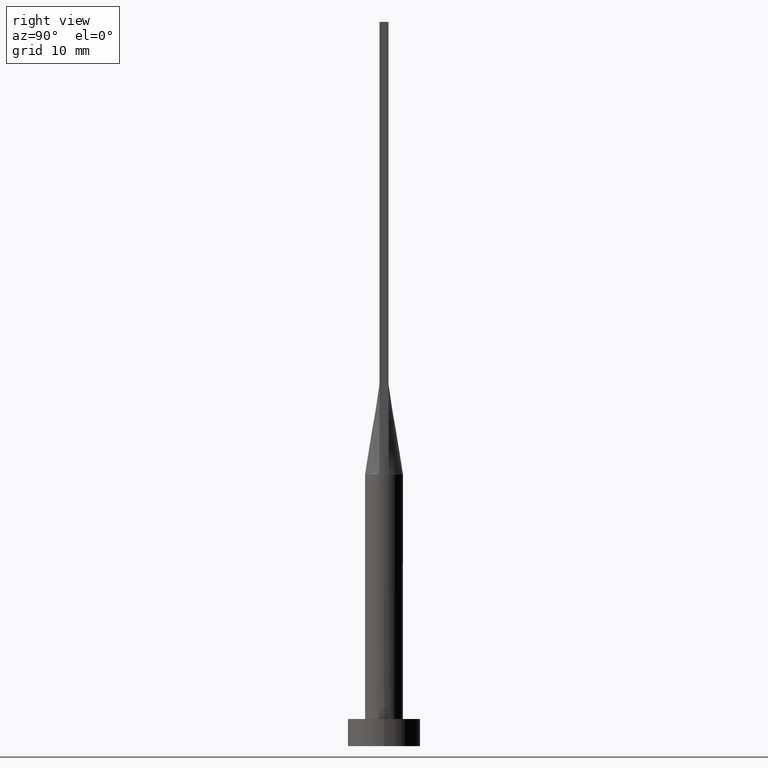
[diagram: clean part render]
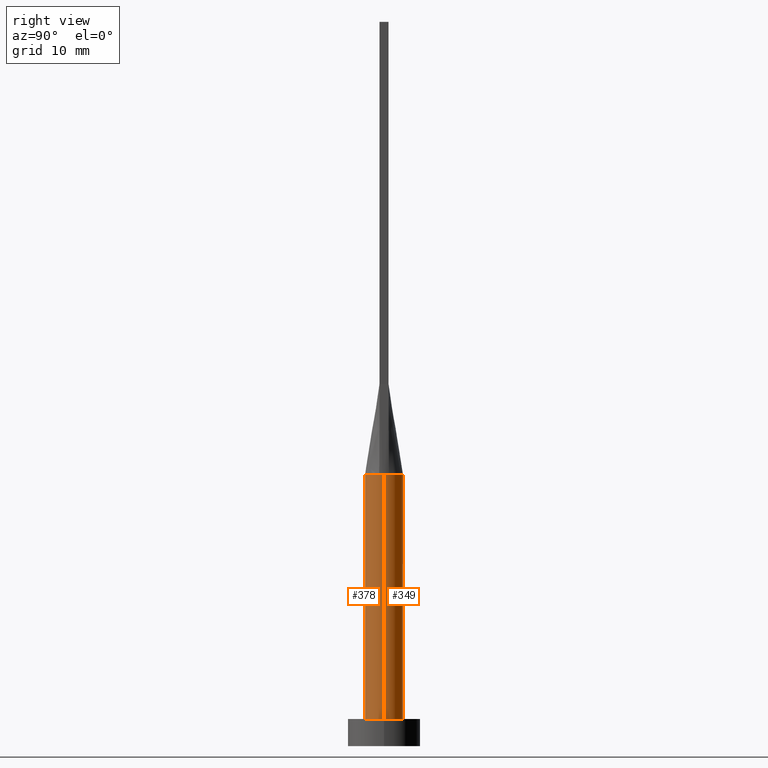
[diagram: same view with one multi-face feature highlighted, each face labeled with its STEP entity id]
A machine part, right view. The highlighted faces form ONE feature: a constant-radius fillet chain: 2 tangent blend faces with common blend radius 2.1 mm. The faces share edges in the B-rep.
Their STEP definitions:
[1] entity #349 (Cylinder):
#2 = CARTESIAN_POINT ( 'NONE',  ( -1.583604922800830428, 1.399063468093436402, 29.99999999999999289 ) ) ;
#25 = DIRECTION ( 'NONE',  ( -0.000000000000000000, -0.000000000000000000, -1.000000000000000000 ) ) ;
#31 = VERTEX_POINT ( 'NONE', #255 ) ;
#46 = CARTESIAN_POINT ( 'NONE',  ( 1.021961681204346606, 1.852908961101259244, 30.00000000000000355 ) ) ;
#53 = B_SPLINE_CURVE_WITH_KNOTS ( 'NONE', 3,
 ( #481, #566, #294, #412, #538, #83, #46, #414, #542, #263, #315, #222, #496, #2, #130, #313, #264, #446 ),
 .UNSPECIFIED., .F., .F.,
 ( 4, 2, 2, 2, 2, 2, 2, 2, 4 ),
 ( 0.000000000000000000, 0.1250000000000000278, 0.2500000000000000555, 0.3750000000000001110, 0.5000000000000000000, 0.6250000000000000000, 0.7500000000000000000, 0.8750000000000001110, 1.000000000000000000 ),
 .UNSPECIFIED. ) ;
#55 = ORIENTED_EDGE ( 'NONE', *, *, #98, .F. ) ;
#71 = DIRECTION ( 'NONE',  ( -0.000000000000000000, -0.000000000000000000, -1.000000000000000000 ) ) ;
#74 = VERTEX_POINT ( 'NONE', #252 ) ;
#75 = EDGE_CURVE ( 'NONE', #74, #275, #53, .T. ) ;
#83 = CARTESIAN_POINT ( 'NONE',  ( 1.235326090059014614, 1.714395692508636770, 30.00000000000001421 ) ) ;
#87 = CIRCLE ( 'NONE', #304, 2.100000000000000089 ) ;
#98 = EDGE_CURVE ( 'NONE', #275, #31, #293, .T. ) ;
#115 = VECTOR ( 'NONE', #71, 1000.000000000000000 ) ;
#125 = EDGE_LOOP ( 'NONE', ( #148, #280, #510, #574, #55, #567 ) ) ;
#130 = CARTESIAN_POINT ( 'NONE',  ( -1.719043754744861596, 1.223020672007445242, 29.99999999999999289 ) ) ;
#134 = CARTESIAN_POINT ( 'NONE',  ( -2.100000000000000089, 0.000000000000000000, 3.000000000000000000 ) ) ;
#148 = ORIENTED_EDGE ( 'NONE', *, *, #413, .F. ) ;
#162 = CYLINDRICAL_SURFACE ( 'NONE', #199, 2.100000000000000089 ) ;
#171 = DIRECTION ( 'NONE',  ( 0.000000000000000000, 0.000000000000000000, 1.000000000000000000 ) ) ;
#178 = VERTEX_POINT ( 'NONE', #553 ) ;
#191 = DIRECTION ( 'NONE',  ( 1.000000000000000000, 0.000000000000000000, 0.000000000000000000 ) ) ;
#199 = AXIS2_PLACEMENT_3D ( 'NONE', #342, #530, #299 ) ;
#213 = LINE ( 'NONE', #482, #491 ) ;
#222 = CARTESIAN_POINT ( 'NONE',  ( -1.021961681204346384, 1.852908961101259022, 30.00000000000000000 ) ) ;
#230 = VERTEX_POINT ( 'NONE', #238 ) ;
#238 = CARTESIAN_POINT ( 'NONE',  ( 2.100000000000000089, 3.372022381799045987E-17, 30.00000000000000000 ) ) ;
#252 = CARTESIAN_POINT ( 'NONE',  ( 2.030996101999494652, 0.5344731476277209126, 30.00000000000000000 ) ) ;
#253 = EDGE_CURVE ( 'NONE', #178, #417, #451, .T. ) ;
#255 = CARTESIAN_POINT ( 'NONE',  ( -2.100000000000000089, -1.080980291041873360E-16, 30.00000000000000000 ) ) ;
#256 = AXIS2_PLACEMENT_3D ( 'NONE', #310, #171, #458 ) ;
#263 = CARTESIAN_POINT ( 'NONE',  ( -0.2698109971861040179, 2.100000000000000089, 30.00000000000000000 ) ) ;
#264 = CARTESIAN_POINT ( 'NONE',  ( -1.987786580065029174, 0.6981017315960602598, 30.00000000000000000 ) ) ;
#269 = DIRECTION ( 'NONE',  ( 0.000000000000000000, 0.000000000000000000, 1.000000000000000000 ) ) ;
#271 = CARTESIAN_POINT ( 'NONE',  ( 0.000000000000000000, 0.000000000000000000, 30.00000000000000000 ) ) ;
#273 = DIRECTION ( 'NONE',  ( 0.000000000000000000, 0.000000000000000000, 1.000000000000000000 ) ) ;
#275 = VERTEX_POINT ( 'NONE', #564 ) ;
#280 = ORIENTED_EDGE ( 'NONE', *, *, #333, .T. ) ;
#293 = CIRCLE ( 'NONE', #256, 2.100000000000000089 ) ;
#294 = CARTESIAN_POINT ( 'NONE',  ( 1.920830191244603746, 0.8725264301372623876, 29.99999999999998934 ) ) ;
#299 = DIRECTION ( 'NONE',  ( -1.000000000000000000, 0.000000000000000000, 0.000000000000000000 ) ) ;
#304 = AXIS2_PLACEMENT_3D ( 'NONE', #271, #269, #461 ) ;
#310 = CARTESIAN_POINT ( 'NONE',  ( 0.000000000000000000, 0.000000000000000000, 30.00000000000000000 ) ) ;
#313 = CARTESIAN_POINT ( 'NONE',  ( -1.920830191244604412, 0.8725264301372623876, 29.99999999999999645 ) ) ;
#314 = AXIS2_PLACEMENT_3D ( 'NONE', #426, #273, #191 ) ;
#315 = CARTESIAN_POINT ( 'NONE',  ( -0.5389299406762299016, 2.046272663899431965, 29.99999999999999645 ) ) ;
#333 = EDGE_CURVE ( 'NONE', #230, #178, #213, .T. ) ;
#341 = CARTESIAN_POINT ( 'NONE',  ( -2.100000000000000089, 0.000000000000000000, 30.00000000000000000 ) ) ;
#342 = CARTESIAN_POINT ( 'NONE',  ( 0.000000000000000000, 0.000000000000000000, 30.00000000000000000 ) ) ;
#349 = ADVANCED_FACE ( 'NONE', ( #396 ), #162, .T. ) ;
#366 = EDGE_CURVE ( 'NONE', #31, #417, #537, .T. ) ;
#396 = FACE_OUTER_BOUND ( 'NONE', #125, .T. ) ;
#412 = CARTESIAN_POINT ( 'NONE',  ( 1.719043754744862040, 1.223020672007445464, 29.99999999999998934 ) ) ;
#413 = EDGE_CURVE ( 'NONE', #230, #74, #87, .T. ) ;
#414 = CARTESIAN_POINT ( 'NONE',  ( 0.5389299406762297906, 2.046272663899431077, 30.00000000000000355 ) ) ;
#417 = VERTEX_POINT ( 'NONE', #134 ) ;
#426 = CARTESIAN_POINT ( 'NONE',  ( 0.000000000000000000, 0.000000000000000000, 3.000000000000000000 ) ) ;
#446 = CARTESIAN_POINT ( 'NONE',  ( -2.031019593402089818, 0.5344793603115657321, 30.00000000000000000 ) ) ;
#451 = CIRCLE ( 'NONE', #314, 2.100000000000000089 ) ;
#458 = DIRECTION ( 'NONE',  ( 1.000000000000000000, 0.000000000000000000, 0.000000000000000000 ) ) ;
#461 = DIRECTION ( 'NONE',  ( 1.000000000000000000, 0.000000000000000000, 0.000000000000000000 ) ) ;
#481 = CARTESIAN_POINT ( 'NONE',  ( 2.030996101999494652, 0.5344731476277209126, 30.00000000000000000 ) ) ;
#482 = CARTESIAN_POINT ( 'NONE',  ( 2.100000000000000089, 2.571758278209441957E-16, 30.00000000000000000 ) ) ;
#491 = VECTOR ( 'NONE', #25, 1000.000000000000000 ) ;
#496 = CARTESIAN_POINT ( 'NONE',  ( -1.235326090059014836, 1.714395692508636326, 30.00000000000000000 ) ) ;
#510 = ORIENTED_EDGE ( 'NONE', *, *, #253, .T. ) ;
#530 = DIRECTION ( 'NONE',  ( -0.000000000000000000, -0.000000000000000000, -1.000000000000000000 ) ) ;
#537 = LINE ( 'NONE', #341, #115 ) ;
#538 = CARTESIAN_POINT ( 'NONE',  ( 1.583604922800830428, 1.399063468093436624, 30.00000000000000000 ) ) ;
#542 = CARTESIAN_POINT ( 'NONE',  ( 0.2698109971861041290, 2.100000000000000089, 30.00000000000000000 ) ) ;
#553 = CARTESIAN_POINT ( 'NONE',  ( 2.100000000000000089, 2.571758278209441957E-16, 3.000000000000000000 ) ) ;
#564 = CARTESIAN_POINT ( 'NONE',  ( -2.031019593402089818, 0.5344793603115657321, 30.00000000000000000 ) ) ;
#566 = CARTESIAN_POINT ( 'NONE',  ( 1.987786580065029174, 0.6981017315960605929, 30.00000000000000355 ) ) ;
#567 = ORIENTED_EDGE ( 'NONE', *, *, #75, .F. ) ;
#574 = ORIENTED_EDGE ( 'NONE', *, *, #366, .F. ) ;
[2] entity #378 (Cylinder):
#9 = AXIS2_PLACEMENT_3D ( 'NONE', #398, #450, #498 ) ;
#17 = CARTESIAN_POINT ( 'NONE',  ( 0.000000000000000000, 0.000000000000000000, 30.00000000000000000 ) ) ;
#25 = DIRECTION ( 'NONE',  ( -0.000000000000000000, -0.000000000000000000, -1.000000000000000000 ) ) ;
#28 = FACE_OUTER_BOUND ( 'NONE', #50, .T. ) ;
#31 = VERTEX_POINT ( 'NONE', #255 ) ;
#35 = CARTESIAN_POINT ( 'NONE',  ( -2.031004407172260162, -0.5344754071304557153, 30.00000000000000000 ) ) ;
#40 = EDGE_CURVE ( 'NONE', #80, #472, #249, .T. ) ;
#49 = AXIS2_PLACEMENT_3D ( 'NONE', #399, #571, #163 ) ;
#50 = EDGE_LOOP ( 'NONE', ( #322, #467, #136, #526, #119, #513 ) ) ;
#68 = CARTESIAN_POINT ( 'NONE',  ( 0.000000000000000000, 0.000000000000000000, 30.00000000000000000 ) ) ;
#71 = DIRECTION ( 'NONE',  ( -0.000000000000000000, -0.000000000000000000, -1.000000000000000000 ) ) ;
#80 = VERTEX_POINT ( 'NONE', #35 ) ;
#103 = CIRCLE ( 'NONE', #406, 2.100000000000000089 ) ;
#109 = CARTESIAN_POINT ( 'NONE',  ( 0.000000000000000000, 0.000000000000000000, 3.000000000000000000 ) ) ;
#115 = VECTOR ( 'NONE', #71, 1000.000000000000000 ) ;
#119 = ORIENTED_EDGE ( 'NONE', *, *, #366, .T. ) ;
#134 = CARTESIAN_POINT ( 'NONE',  ( -2.100000000000000089, 0.000000000000000000, 3.000000000000000000 ) ) ;
#136 = ORIENTED_EDGE ( 'NONE', *, *, #40, .F. ) ;
#163 = DIRECTION ( 'NONE',  ( -1.000000000000000000, 0.000000000000000000, 0.000000000000000000 ) ) ;
#178 = VERTEX_POINT ( 'NONE', #553 ) ;
#184 = CIRCLE ( 'NONE', #9, 2.100000000000000089 ) ;
#209 = CYLINDRICAL_SURFACE ( 'NONE', #49, 2.100000000000000089 ) ;
#213 = LINE ( 'NONE', #482, #491 ) ;
#216 = DIRECTION ( 'NONE',  ( 1.000000000000000000, 0.000000000000000000, 0.000000000000000000 ) ) ;
#230 = VERTEX_POINT ( 'NONE', #238 ) ;
#238 = CARTESIAN_POINT ( 'NONE',  ( 2.100000000000000089, 3.372022381799045987E-17, 30.00000000000000000 ) ) ;
#249 = CIRCLE ( 'NONE', #516, 2.100000000000000089 ) ;
#255 = CARTESIAN_POINT ( 'NONE',  ( -2.100000000000000089, -1.080980291041873360E-16, 30.00000000000000000 ) ) ;
#259 = DIRECTION ( 'NONE',  ( 0.000000000000000000, 0.000000000000000000, 1.000000000000000000 ) ) ;
#289 = DIRECTION ( 'NONE',  ( 1.000000000000000000, 0.000000000000000000, 0.000000000000000000 ) ) ;
#322 = ORIENTED_EDGE ( 'NONE', *, *, #333, .F. ) ;
#333 = EDGE_CURVE ( 'NONE', #230, #178, #213, .T. ) ;
#341 = CARTESIAN_POINT ( 'NONE',  ( -2.100000000000000089, 0.000000000000000000, 30.00000000000000000 ) ) ;
#352 = DIRECTION ( 'NONE',  ( 0.000000000000000000, 0.000000000000000000, 1.000000000000000000 ) ) ;
#366 = EDGE_CURVE ( 'NONE', #31, #417, #537, .T. ) ;
#378 = ADVANCED_FACE ( 'NONE', ( #28 ), #209, .T. ) ;
#387 = AXIS2_PLACEMENT_3D ( 'NONE', #68, #352, #216 ) ;
#398 = CARTESIAN_POINT ( 'NONE',  ( 0.000000000000000000, 0.000000000000000000, 30.00000000000000000 ) ) ;
#399 = CARTESIAN_POINT ( 'NONE',  ( 0.000000000000000000, 0.000000000000000000, 30.00000000000000000 ) ) ;
#406 = AXIS2_PLACEMENT_3D ( 'NONE', #109, #568, #289 ) ;
#417 = VERTEX_POINT ( 'NONE', #134 ) ;
#437 = DIRECTION ( 'NONE',  ( 1.000000000000000000, 0.000000000000000000, 0.000000000000000000 ) ) ;
#441 = CIRCLE ( 'NONE', #387, 2.100000000000000089 ) ;
#450 = DIRECTION ( 'NONE',  ( 0.000000000000000000, 0.000000000000000000, 1.000000000000000000 ) ) ;
#467 = ORIENTED_EDGE ( 'NONE', *, *, #543, .F. ) ;
#472 = VERTEX_POINT ( 'NONE', #478 ) ;
#478 = CARTESIAN_POINT ( 'NONE',  ( 2.031027953490633031, -0.5344816358097418396, 30.00000000000000000 ) ) ;
#482 = CARTESIAN_POINT ( 'NONE',  ( 2.100000000000000089, 2.571758278209441957E-16, 30.00000000000000000 ) ) ;
#483 = EDGE_CURVE ( 'NONE', #417, #178, #103, .T. ) ;
#491 = VECTOR ( 'NONE', #25, 1000.000000000000000 ) ;
#498 = DIRECTION ( 'NONE',  ( 1.000000000000000000, 4.440892098500626951E-15, 0.000000000000000000 ) ) ;
#502 = EDGE_CURVE ( 'NONE', #31, #80, #441, .T. ) ;
#513 = ORIENTED_EDGE ( 'NONE', *, *, #483, .T. ) ;
#516 = AXIS2_PLACEMENT_3D ( 'NONE', #17, #259, #437 ) ;
#526 = ORIENTED_EDGE ( 'NONE', *, *, #502, .F. ) ;
#537 = LINE ( 'NONE', #341, #115 ) ;
#543 = EDGE_CURVE ( 'NONE', #472, #230, #184, .T. ) ;
#553 = CARTESIAN_POINT ( 'NONE',  ( 2.100000000000000089, 2.571758278209441957E-16, 3.000000000000000000 ) ) ;
#568 = DIRECTION ( 'NONE',  ( 0.000000000000000000, 0.000000000000000000, 1.000000000000000000 ) ) ;
#571 = DIRECTION ( 'NONE',  ( -0.000000000000000000, -0.000000000000000000, -1.000000000000000000 ) ) ;